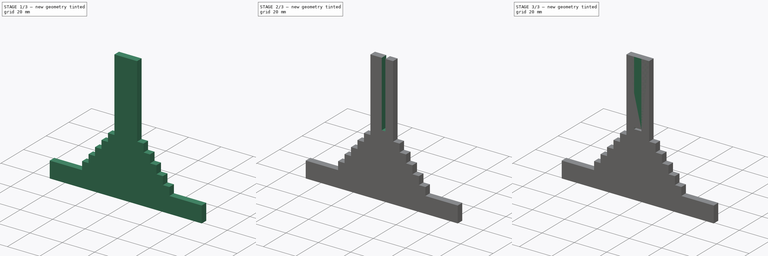
[diagram: build sequence overview — one tinted view per stage of 3, left to right]
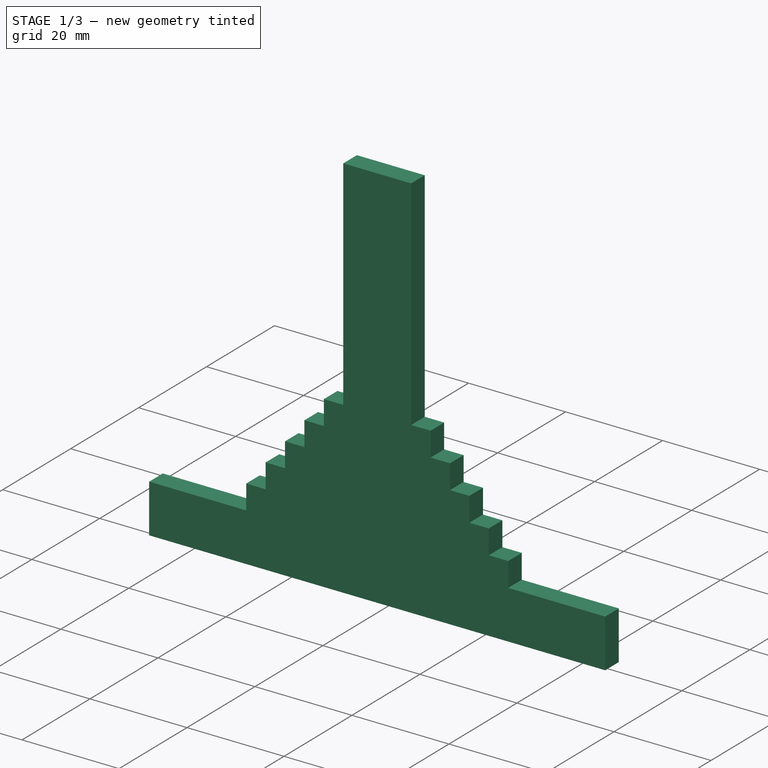
[diagram: stage 1 of 3 — iso view after this stage's code; geometry added in this stage tinted green]
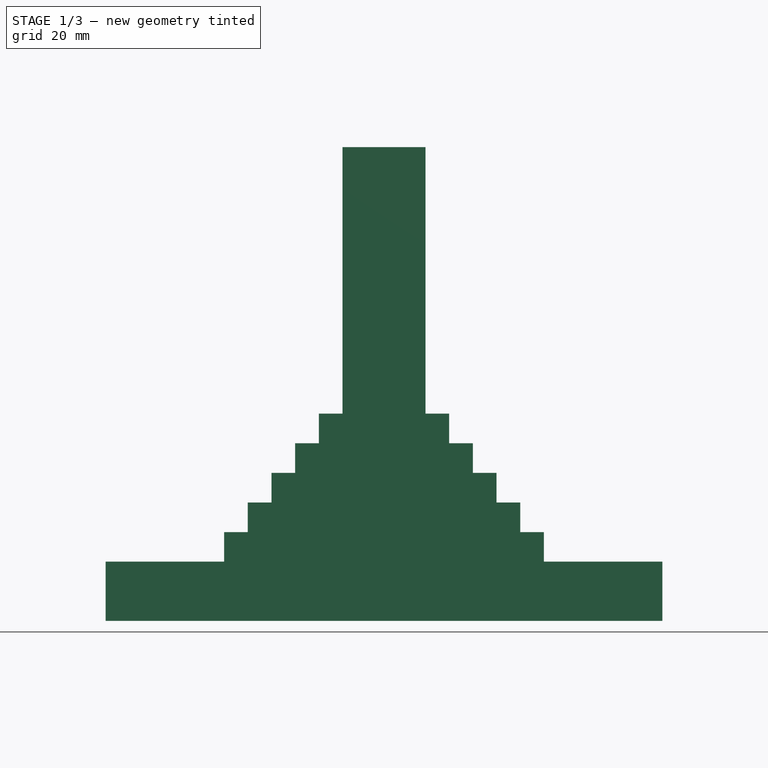
[diagram: stage 1 of 3 — front view after this stage's code; geometry added in this stage tinted green]
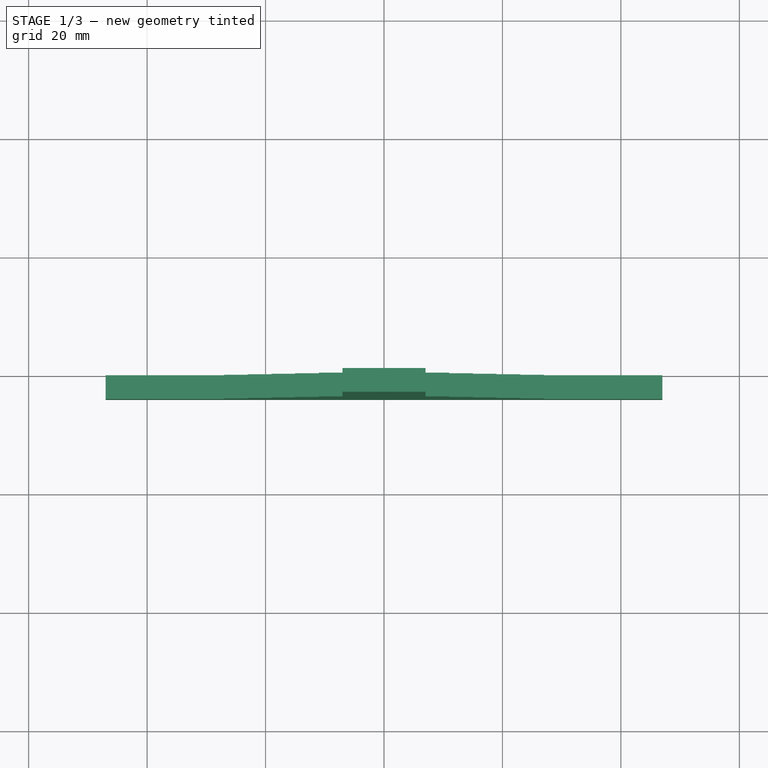
[diagram: stage 1 of 3 — top view after this stage's code; geometry added in this stage tinted green]
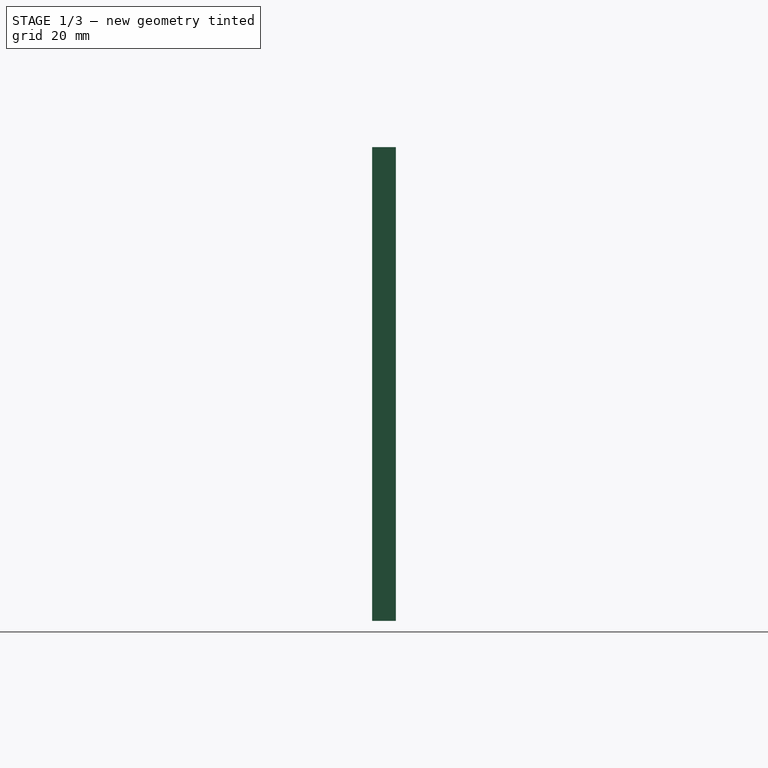
[diagram: stage 1 of 3 — right view after this stage's code; geometry added in this stage tinted green]
FCSTD DOCUMENT  (FreeCAD 1.0R39109 (Git))
Label: bottleDryer
License: All rights reserved
LicenseURL: https://en.wikipedia.org/wiki/All_rights_reserved
objects: Sketcher::SketchObject×2, PartDesign::Pad×2, PartDesign::Mirrored×2, PartDesign::SubtractiveBox×2, PartDesign::Body×2
note: 22 computed .brp shape members not serialized (recipe doc carries the construction recipe); baked Part::Feature solids carry a one-line shape summary decoded from their .brp

FEATURE [PartDesign::Body] Body
  AllowCompound = false
  Group = -> [Sketch,Pad,Mirrored,Box]
  Origin = -> Origin
  Tip = -> Box
FEATURE [Sketcher::SketchObject] Sketch001
  ArcFitTolerance = 1e-06
  AttachmentSupport = -> [XZ_Plane001]
  FullyConstrained = true
  MakeInternals = false
  MapMode = 5
  Placement = pos=(0,0,0) rot=(1,0,0;1.5708rad)
  sketch-geometry (34):
    g0: LineSegment StartX=0 StartY=0 StartZ=0 EndX=0 EndY=80 EndZ=0
    g1: LineSegment StartX=0 StartY=80 StartZ=0 EndX=-7 EndY=80 EndZ=0
    g2: LineSegment [constr] StartX=-7 StartY=80 StartZ=0 EndX=-7 EndY=0 EndZ=0
    g3: LineSegment StartX=-7 StartY=0 StartZ=0 EndX=0 EndY=0 EndZ=0
    g4: LineSegment [constr] StartX=-7 StartY=0 StartZ=0 EndX=-7 EndY=10 EndZ=0
    g5: LineSegment [constr] StartX=-7 StartY=10 StartZ=0 EndX=-47 EndY=10 EndZ=0
    g6: LineSegment StartX=-47 StartY=10 StartZ=0 EndX=-47 EndY=0 EndZ=0
    g7: LineSegment StartX=-47 StartY=0 StartZ=0 EndX=-7 EndY=0 EndZ=0
    g8: LineSegment StartX=-7 StartY=35 StartZ=0 EndX=-11 EndY=35 EndZ=0
    g9: LineSegment [constr] StartX=-11 StartY=35 StartZ=0 EndX=-11 EndY=10 EndZ=0
    g10: LineSegment [constr] StartX=-11 StartY=10 StartZ=0 EndX=-7 EndY=10 EndZ=0
    g11: LineSegment [constr] StartX=-7 StartY=10 StartZ=0 EndX=-7 EndY=35 EndZ=0
    g12: LineSegment StartX=-11 StartY=30 StartZ=0 EndX=-15 EndY=30 EndZ=0
    g13: LineSegment [constr] StartX=-15 StartY=30 StartZ=0 EndX=-15 EndY=10 EndZ=0
    g14: LineSegment [constr] StartX=-15 StartY=10 StartZ=0 EndX=-11 EndY=10 EndZ=0
    g15: LineSegment [constr] StartX=-11 StartY=10 StartZ=0 EndX=-11 EndY=30 EndZ=0
    g16: LineSegment StartX=-15 StartY=25 StartZ=0 EndX=-19 EndY=25 EndZ=0
    g17: LineSegment [constr] StartX=-19 StartY=25 StartZ=0 EndX=-19 EndY=10 EndZ=0
    g18: LineSegment [constr] StartX=-19 StartY=10 StartZ=0 EndX=-15 EndY=10 EndZ=0
    g19: LineSegment [constr] StartX=-15 StartY=10 StartZ=0 EndX=-15 EndY=25 EndZ=0
    g20: LineSegment StartX=-19 StartY=20 StartZ=0 EndX=-23 EndY=20 EndZ=0
    g21: LineSegment [constr] StartX=-23 StartY=20 StartZ=0 EndX=-23 EndY=10 EndZ=0
    g22: LineSegment [constr] StartX=-23 StartY=10 StartZ=0 EndX=-19 EndY=10 EndZ=0
    g23: LineSegment [constr] StartX=-19 StartY=10 StartZ=0 EndX=-19 EndY=20 EndZ=0
    g24: LineSegment StartX=-23 StartY=15 StartZ=0 EndX=-27 EndY=15 EndZ=0
    g25: LineSegment StartX=-27 StartY=15 StartZ=0 EndX=-27 EndY=10 EndZ=0
    g26: LineSegment [constr] StartX=-27 StartY=10 StartZ=0 EndX=-23 EndY=10 EndZ=0
    g27: LineSegment [constr] StartX=-23 StartY=10 StartZ=0 EndX=-23 EndY=15 EndZ=0
    g28: LineSegment StartX=-23 StartY=15 StartZ=0 EndX=-23 EndY=20 EndZ=0
    g29: LineSegment StartX=-19 StartY=20 StartZ=0 EndX=-19 EndY=25 EndZ=0
    g30: LineSegment StartX=-15 StartY=25 StartZ=0 EndX=-15 EndY=30 EndZ=0
    g31: LineSegment StartX=-11 StartY=30 StartZ=0 EndX=-11 EndY=35 EndZ=0
    g32: LineSegment StartX=-7 StartY=80 StartZ=0 EndX=-7 EndY=35 EndZ=0
    g33: LineSegment StartX=-27 StartY=10 StartZ=0 EndX=-47 EndY=10 EndZ=0
  constraints (93):
    c: Coincident(g0,g1)
    c: Coincident(g1,g2)
    c: Coincident(g2,g3)
    c: Coincident(g3,g0)
    c: Vertical(g0)
    c: Vertical(g2)
    c: Horizontal(g1)
    c: Horizontal(g3)
    c: Coincident(g0,g-1)
    c: DistanceY(g2,g2) = 80
    c: Coincident(g4,g5)
    c: Coincident(g5,g6)
    c: Coincident(g6,g7)
    c: Coincident(g7,g4)
    c: Vertical(g4)
    c: Vertical(g6)
    c: Horizontal(g5)
    c: Horizontal(g7)
    c: Coincident(g4,g2)
    c: DistanceX(g3,g3) = 7
    c: DistanceX(g7,g7) = 40
    c: Distance(g6,g6) = 10
    c: Coincident(g8,g9)
    c: Coincident(g9,g10)
    c: Coincident(g10,g11)
    c: Coincident(g11,g8)
    c: Horizontal(g8)
    c: Horizontal(g10)
    c: Vertical(g9)
    c: Vertical(g11)
    c: PointOnObject(g8,g2)
    c: PointOnObject(g9,g5)
    c: Coincident(g12,g13)
    c: Coincident(g13,g14)
    c: Coincident(g14,g15)
    c: Coincident(g15,g12)
    c: Horizontal(g12)
    c: Horizontal(g14)
    c: Vertical(g13)
    c: Vertical(g15)
    c: PointOnObject(g12,g9)
    c: PointOnObject(g13,g5)
    c: Coincident(g16,g17)
    c: Coincident(g17,g18)
    c: Coincident(g18,g19)
    c: Coincident(g19,g16)
    c: Horizontal(g16)
    c: Horizontal(g18)
    c: Vertical(g17)
    c: Vertical(g19)
    c: PointOnObject(g16,g13)
    c: PointOnObject(g17,g5)
    c: Equal(g12,g8)
    c: Equal(g8,g16)
    c: Coincident(g20,g21)
    c: Coincident(g21,g22)
    c: Coincident(g22,g23)
    c: Coincident(g23,g20)
    c: Horizontal(g20)
    c: Horizontal(g22)
    c: Vertical(g21)
    c: Vertical(g23)
    c: PointOnObject(g20,g17)
    c: PointOnObject(g21,g5)
    c: Coincident(g24,g25)
    c: Coincident(g25,g26)
    c: Coincident(g26,g27)
    c: Coincident(g27,g24)
    c: Horizontal(g24)
    c: Horizontal(g26)
    c: Vertical(g25)
    c: Vertical(g27)
    c: Symmetric(g21,g21,g24)
    c: PointOnObject(g25,g5)
    c: Equal(g24,g20)
    c: Equal(g20,g16)
    c: Coincident(g28,g24)
    c: Coincident(g28,g20)
    c: Coincident(g29,g20)
    c: Coincident(g29,g16)
    c: Coincident(g30,g16)
    c: Coincident(g30,g12)
    c: Coincident(g31,g12)
    c: Coincident(g31,g8)
    c: Equal(g31,g30)
    c: Equal(g30,g29)
    c: Equal(g29,g28)
    c: Distance(g8,g8) = 4
    c: Distance(g31,g31) = 5
    c: Coincident(g32,g1)
    c: Coincident(g32,g8)
    c: Coincident(g33,g25)
    c: Coincident(g33,g5)
FEATURE [PartDesign::Pad] Pad001
  Direction = (0,-1,2e-16)
  Length = 4
  Length2 = 10
  Placement = pos=(0,0,0) rot=(1,0,0;1.5708rad)
  Profile = -> Sketch001
  ReferenceAxis = -> Sketch001 [N_Axis]
  Refine = true
  Suppressed = false
  Type = 0
FEATURE [PartDesign::Mirrored] Mirrored001
  BaseFeature = -> Pad001
  MirrorPlane = -> YZ_Plane001
  Placement = pos=(0,0,0) rot=(1,0,0;1.5708rad)
  Refine = true
  Suppressed = false
  TransformMode = 1
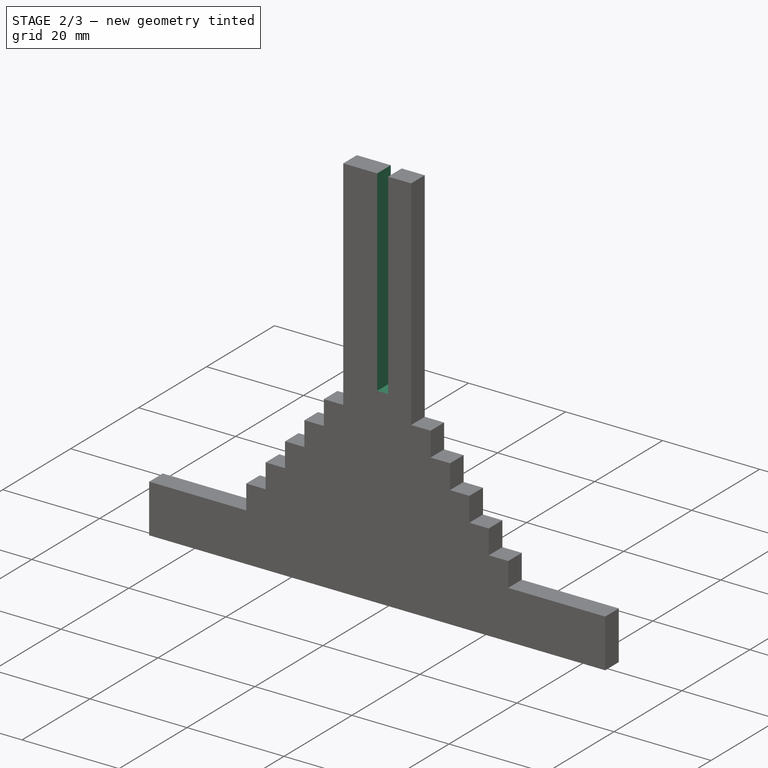
[diagram: stage 2 of 3 — iso view after this stage's code; geometry added in this stage tinted green]
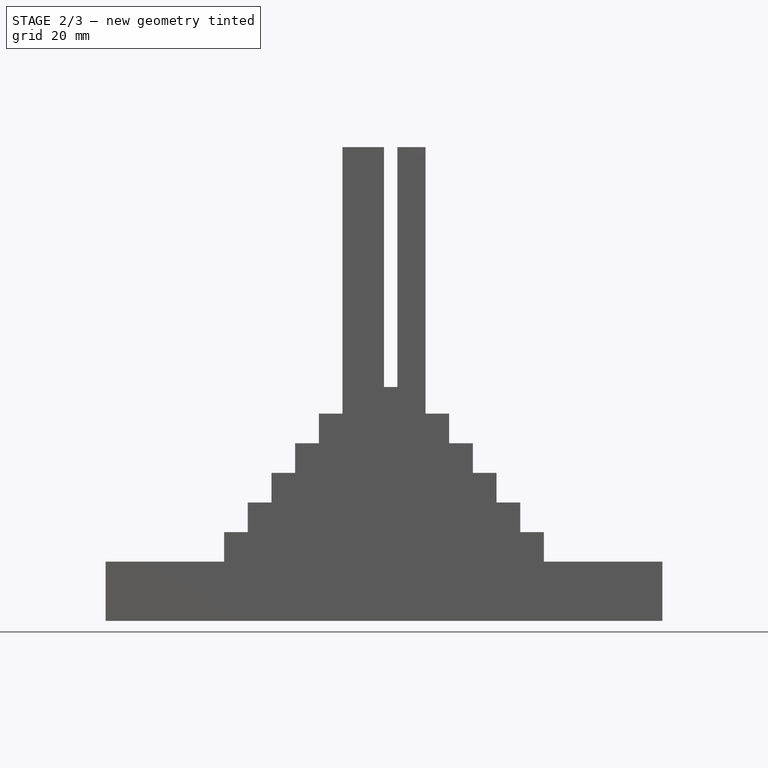
[diagram: stage 2 of 3 — front view after this stage's code; geometry added in this stage tinted green]
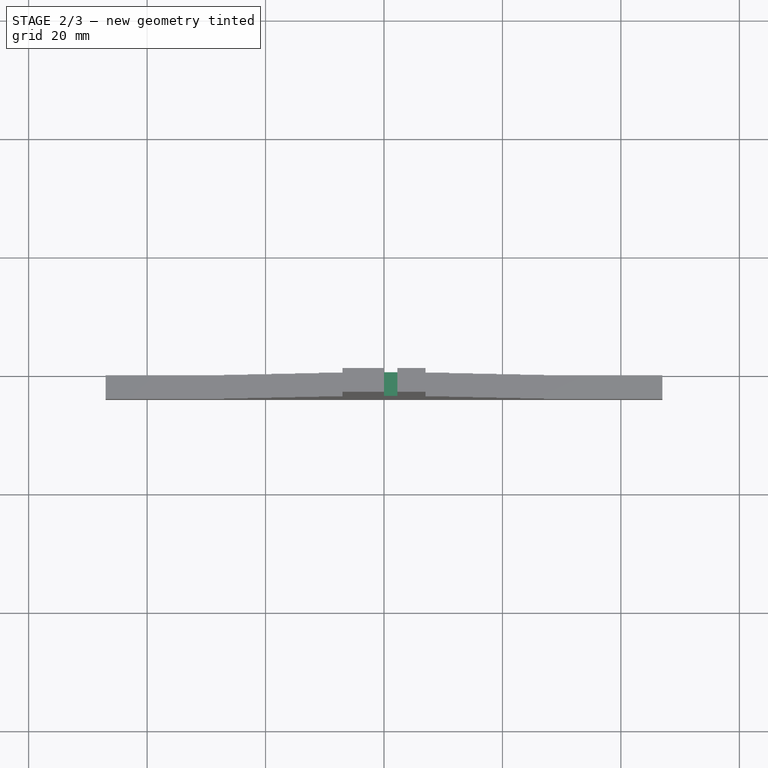
[diagram: stage 2 of 3 — top view after this stage's code; geometry added in this stage tinted green]
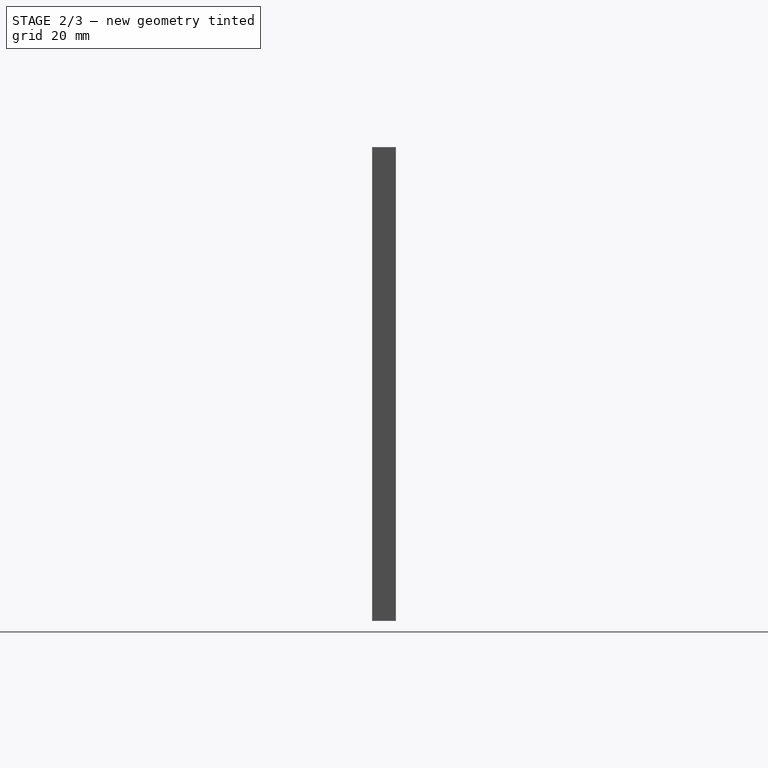
[diagram: stage 2 of 3 — right view after this stage's code; geometry added in this stage tinted green]
FEATURE [Sketcher::SketchObject] Sketch
  ArcFitTolerance = 1e-06
  AttachmentSupport = -> [XZ_Plane]
  FullyConstrained = true
  MakeInternals = false
  MapMode = 5
  Placement = pos=(0,0,0) rot=(1,0,0;1.5708rad)
  sketch-geometry (34):
    g0: LineSegment StartX=0 StartY=0 StartZ=0 EndX=0 EndY=80 EndZ=0
    g1: LineSegment StartX=0 StartY=80 StartZ=0 EndX=-7 EndY=80 EndZ=0
    g2: LineSegment [constr] StartX=-7 StartY=80 StartZ=0 EndX=-7 EndY=0 EndZ=0
    g3: LineSegment StartX=-7 StartY=0 StartZ=0 EndX=0 EndY=0 EndZ=0
    g4: LineSegment [constr] StartX=-7 StartY=0 StartZ=0 EndX=-7 EndY=10 EndZ=0
    g5: LineSegment [constr] StartX=-7 StartY=10 StartZ=0 EndX=-47 EndY=10 EndZ=0
    g6: LineSegment StartX=-47 StartY=10 StartZ=0 EndX=-47 EndY=0 EndZ=0
    g7: LineSegment StartX=-47 StartY=0 StartZ=0 EndX=-7 EndY=0 EndZ=0
    g8: LineSegment StartX=-7 StartY=35 StartZ=0 EndX=-11 EndY=35 EndZ=0
    g9: LineSegment [constr] StartX=-11 StartY=35 StartZ=0 EndX=-11 EndY=10 EndZ=0
    g10: LineSegment [constr] StartX=-11 StartY=10 StartZ=0 EndX=-7 EndY=10 EndZ=0
    g11: LineSegment [constr] StartX=-7 StartY=10 StartZ=0 EndX=-7 EndY=35 EndZ=0
    g12: LineSegment StartX=-11 StartY=30 StartZ=0 EndX=-15 EndY=30 EndZ=0
    g13: LineSegment [constr] StartX=-15 StartY=30 StartZ=0 EndX=-15 EndY=10 EndZ=0
    g14: LineSegment [constr] StartX=-15 StartY=10 StartZ=0 EndX=-11 EndY=10 EndZ=0
    g15: LineSegment [constr] StartX=-11 StartY=10 StartZ=0 EndX=-11 EndY=30 EndZ=0
    g16: LineSegment StartX=-15 StartY=25 StartZ=0 EndX=-19 EndY=25 EndZ=0
    g17: LineSegment [constr] StartX=-19 StartY=25 StartZ=0 EndX=-19 EndY=10 EndZ=0
    g18: LineSegment [constr] StartX=-19 StartY=10 StartZ=0 EndX=-15 EndY=10 EndZ=0
    g19: LineSegment [constr] StartX=-15 StartY=10 StartZ=0 EndX=-15 EndY=25 EndZ=0
    g20: LineSegment StartX=-19 StartY=20 StartZ=0 EndX=-23 EndY=20 EndZ=0
    g21: LineSegment [constr] StartX=-23 StartY=20 StartZ=0 EndX=-23 EndY=10 EndZ=0
    g22: LineSegment [constr] StartX=-23 StartY=10 StartZ=0 EndX=-19 EndY=10 EndZ=0
    g23: LineSegment [constr] StartX=-19 StartY=10 StartZ=0 EndX=-19 EndY=20 EndZ=0
    g24: LineSegment StartX=-23 StartY=15 StartZ=0 EndX=-27 EndY=15 EndZ=0
    g25: LineSegment StartX=-27 StartY=15 StartZ=0 EndX=-27 EndY=10 EndZ=0
    g26: LineSegment [constr] StartX=-27 StartY=10 StartZ=0 EndX=-23 EndY=10 EndZ=0
    g27: LineSegment [constr] StartX=-23 StartY=10 StartZ=0 EndX=-23 EndY=15 EndZ=0
    g28: LineSegment StartX=-23 StartY=15 StartZ=0 EndX=-23 EndY=20 EndZ=0
    g29: LineSegment StartX=-19 StartY=20 StartZ=0 EndX=-19 EndY=25 EndZ=0
    g30: LineSegment StartX=-15 StartY=25 StartZ=0 EndX=-15 EndY=30 EndZ=0
    g31: LineSegment StartX=-11 StartY=30 StartZ=0 EndX=-11 EndY=35 EndZ=0
    g32: LineSegment StartX=-7 StartY=80 StartZ=0 EndX=-7 EndY=35 EndZ=0
    g33: LineSegment StartX=-27 StartY=10 StartZ=0 EndX=-47 EndY=10 EndZ=0
  constraints (93):
    c: Coincident(g0,g1)
    c: Coincident(g1,g2)
    c: Coincident(g2,g3)
    c: Coincident(g3,g0)
    c: Vertical(g0)
    c: Vertical(g2)
    c: Horizontal(g1)
    c: Horizontal(g3)
    c: Coincident(g0,g-1)
    c: DistanceY(g2,g2) = 80
    c: Coincident(g4,g5)
    c: Coincident(g5,g6)
    c: Coincident(g6,g7)
    c: Coincident(g7,g4)
    c: Vertical(g4)
    c: Vertical(g6)
    c: Horizontal(g5)
    c: Horizontal(g7)
    c: Coincident(g4,g2)
    c: DistanceX(g3,g3) = 7
    c: DistanceX(g7,g7) = 40
    c: Distance(g6,g6) = 10
    c: Coincident(g8,g9)
    c: Coincident(g9,g10)
    c: Coincident(g10,g11)
    c: Coincident(g11,g8)
    c: Horizontal(g8)
    c: Horizontal(g10)
    c: Vertical(g9)
    c: Vertical(g11)
    c: PointOnObject(g8,g2)
    c: PointOnObject(g9,g5)
    c: Coincident(g12,g13)
    c: Coincident(g13,g14)
    c: Coincident(g14,g15)
    c: Coincident(g15,g12)
    c: Horizontal(g12)
    c: Horizontal(g14)
    c: Vertical(g13)
    c: Vertical(g15)
    c: PointOnObject(g12,g9)
    c: PointOnObject(g13,g5)
    c: Coincident(g16,g17)
    c: Coincident(g17,g18)
    c: Coincident(g18,g19)
    c: Coincident(g19,g16)
    c: Horizontal(g16)
    c: Horizontal(g18)
    c: Vertical(g17)
    c: Vertical(g19)
    c: PointOnObject(g16,g13)
    c: PointOnObject(g17,g5)
    c: Equal(g12,g8)
    c: Equal(g8,g16)
    c: Coincident(g20,g21)
    c: Coincident(g21,g22)
    c: Coincident(g22,g23)
    c: Coincident(g23,g20)
    c: Horizontal(g20)
    c: Horizontal(g22)
    c: Vertical(g21)
    c: Vertical(g23)
    c: PointOnObject(g20,g17)
    c: PointOnObject(g21,g5)
    c: Coincident(g24,g25)
    c: Coincident(g25,g26)
    c: Coincident(g26,g27)
    c: Coincident(g27,g24)
    c: Horizontal(g24)
    c: Horizontal(g26)
    c: Vertical(g25)
    c: Vertical(g27)
    c: Symmetric(g21,g21,g24)
    c: PointOnObject(g25,g5)
    c: Equal(g24,g20)
    c: Equal(g20,g16)
    c: Coincident(g28,g24)
    c: Coincident(g28,g20)
    c: Coincident(g29,g20)
    c: Coincident(g29,g16)
    c: Coincident(g30,g16)
    c: Coincident(g30,g12)
    c: Coincident(g31,g12)
    c: Coincident(g31,g8)
    c: Equal(g31,g30)
    c: Equal(g30,g29)
    c: Equal(g29,g28)
    c: Distance(g8,g8) = 4
    c: Distance(g31,g31) = 5
    c: Coincident(g32,g1)
    c: Coincident(g32,g8)
    c: Coincident(g33,g25)
    c: Coincident(g33,g5)
FEATURE [PartDesign::Pad] Pad
  Direction = (0,-1,2e-16)
  Length = 4
  Length2 = 10
  Placement = pos=(0,0,0) rot=(1,0,0;1.5708rad)
  Profile = -> Sketch
  ReferenceAxis = -> Sketch [N_Axis]
  Refine = true
  Suppressed = false
  Type = 0
FEATURE [PartDesign::SubtractiveBox] Box001
  AttacherType = Attacher::AttachEngine3D
  AttachmentOffset = pos=(-2.25,-80,0) rot=(0,0,1;0rad)
  AttachmentSupport = -> [Mirrored001]
  BaseFeature = -> Mirrored001
  Height = 7
  Length = 4.5
  MapMode = 5
  Placement = pos=(2.25,-2.09e-14,80) rot=(0,0.707107,-0.707107;3.14159rad)
  Refine = true
  Suppressed = false
  Width = 40.5
  expr: .AttachmentOffset.Base.x = -Length / 2
  expr: Length = Pad001.Length + 0.5 mm
FEATURE [PartDesign::Body] Body001
  AllowCompound = false
  Group = -> [Sketch001,Pad001,Mirrored001,Box001]
  Origin = -> Origin001
  Tip = -> Box001
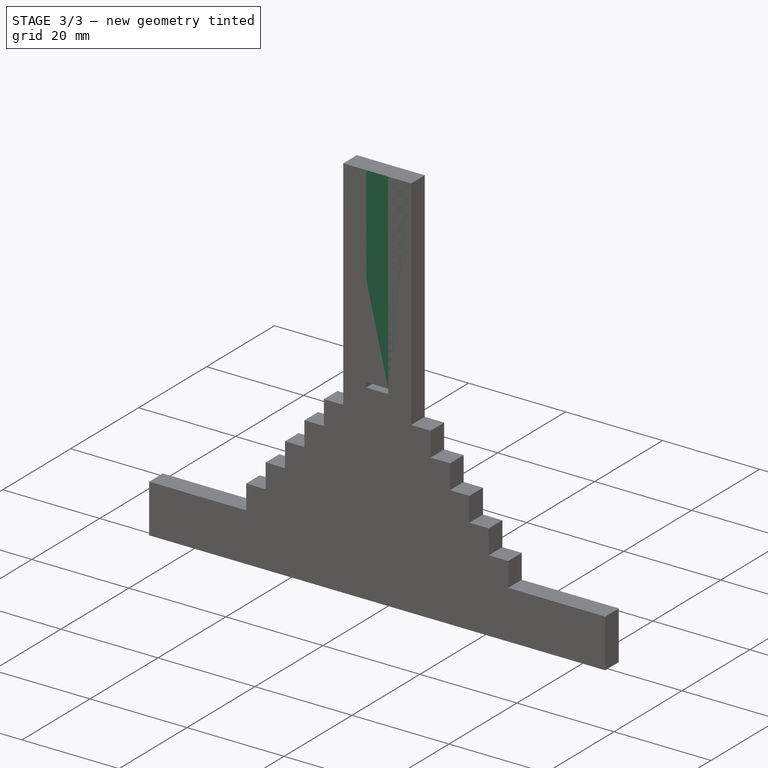
[diagram: stage 3 of 3 — iso view after this stage's code; geometry added in this stage tinted green]
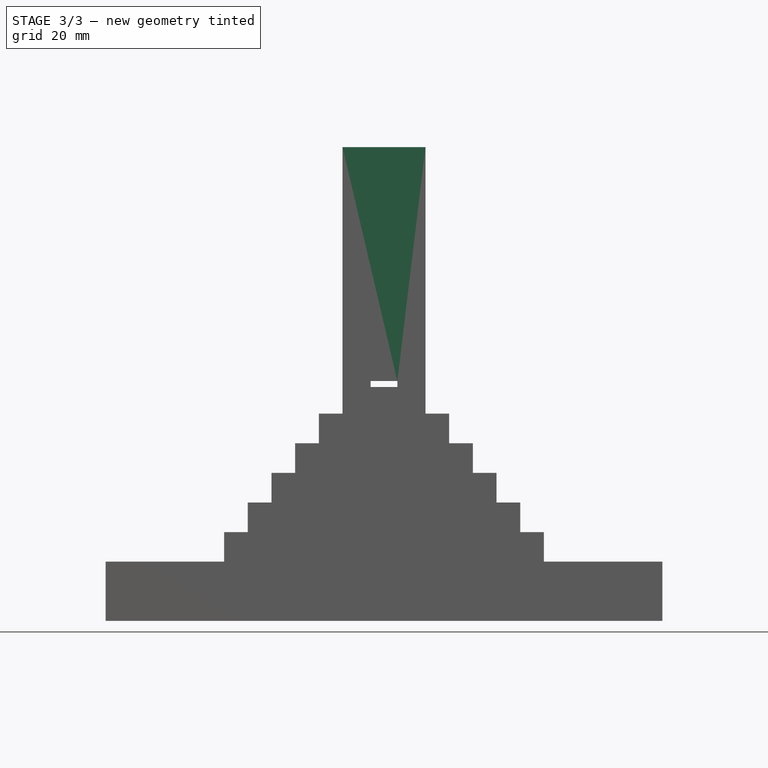
[diagram: stage 3 of 3 — front view after this stage's code; geometry added in this stage tinted green]
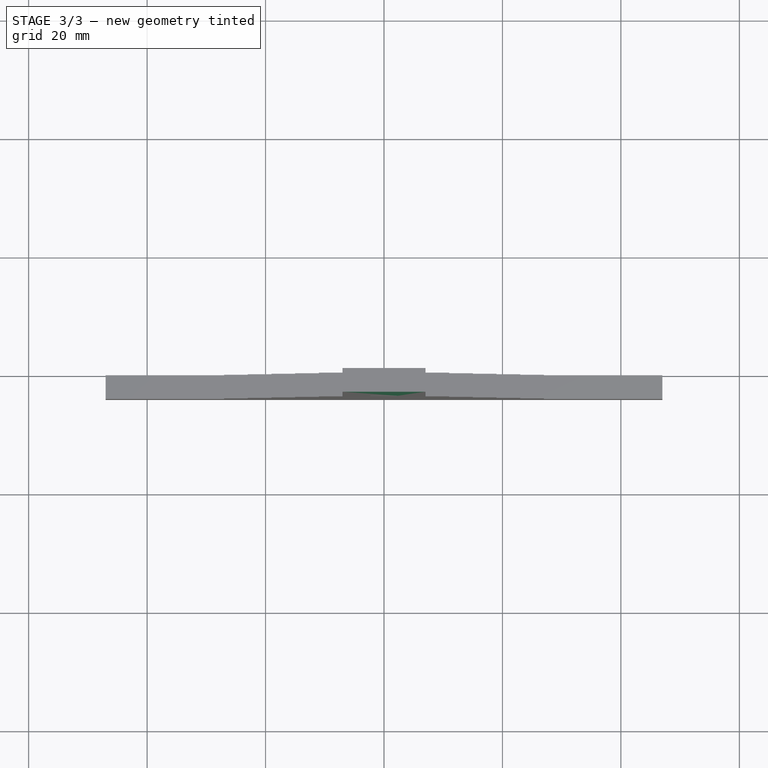
[diagram: stage 3 of 3 — top view after this stage's code; geometry added in this stage tinted green]
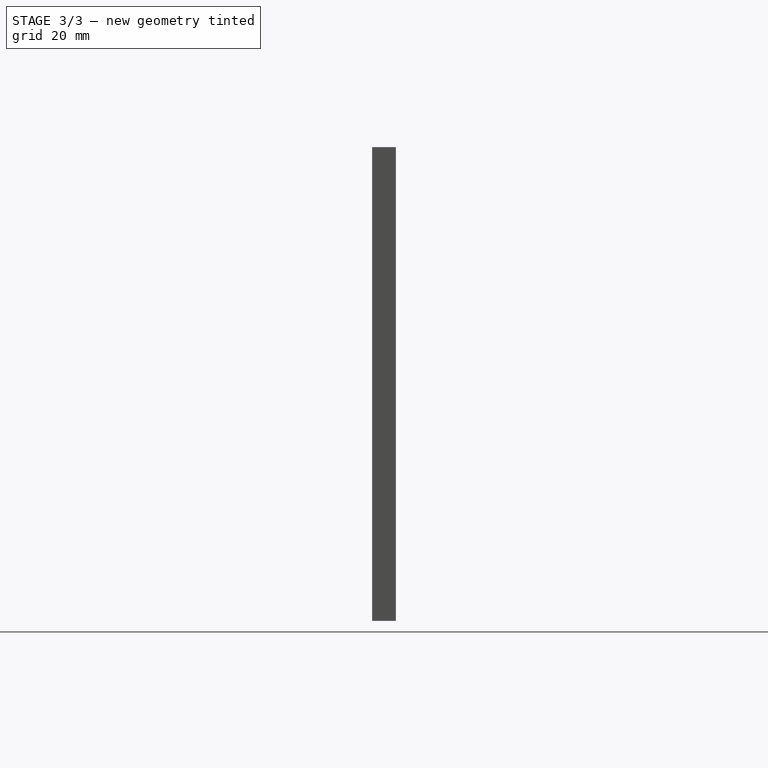
[diagram: stage 3 of 3 — right view after this stage's code; geometry added in this stage tinted green]
FEATURE [PartDesign::Mirrored] Mirrored
  BaseFeature = -> Pad
  MirrorPlane = -> YZ_Plane
  Placement = pos=(0,0,0) rot=(1,0,0;1.5708rad)
  Refine = true
  Suppressed = false
  TransformMode = 1
FEATURE [PartDesign::SubtractiveBox] Box
  AttacherType = Attacher::AttachEngine3D
  AttachmentOffset = pos=(-2.25,0,0) rot=(0,0,1;0rad)
  AttachmentSupport = -> [Mirrored]
  BaseFeature = -> Mirrored
  Height = 7
  Length = 4.5
  MapMode = 5
  Placement = pos=(2.25,-4,1e-15) rot=(0,0.707107,0.707107;3.14159rad)
  Refine = true
  Suppressed = false
  Width = 40.5
  expr: .AttachmentOffset.Base.x = -Length / 2
  expr: Length = Pad.Length + 0.5 mm
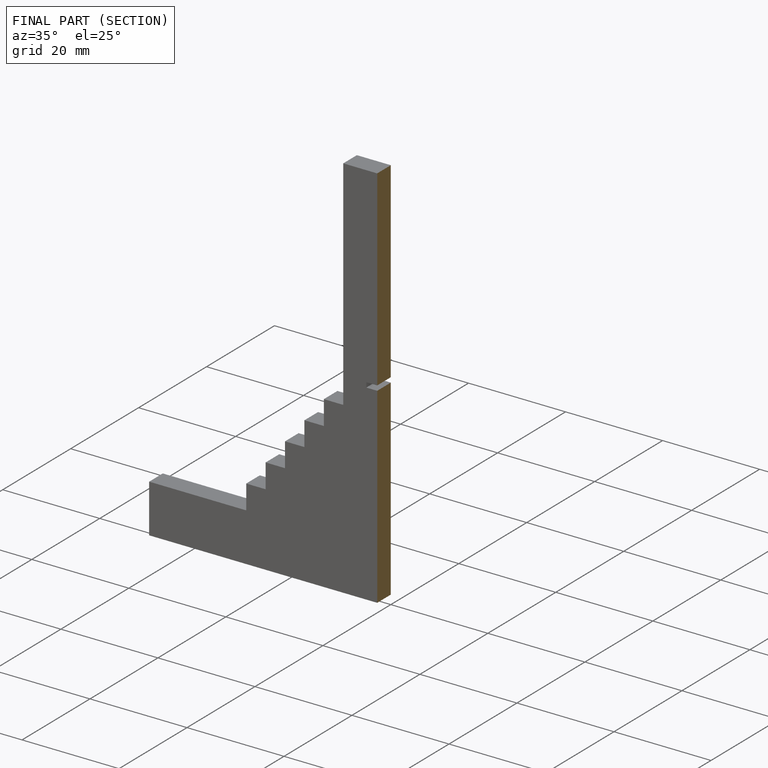
[diagram: finished part — half-section view (interior)]
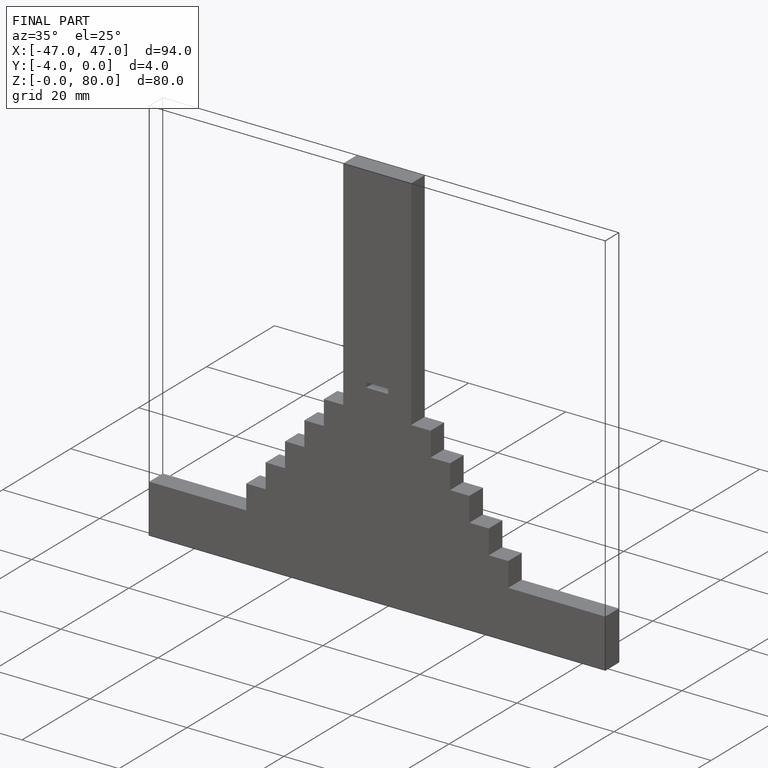
[diagram: finished part — iso view with bounding-box wireframe]
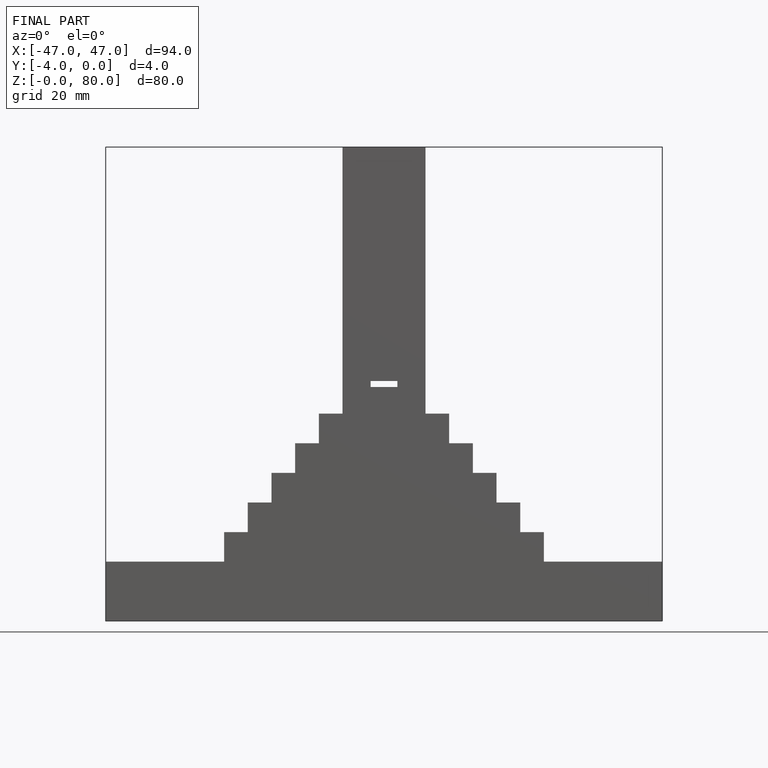
[diagram: finished part — front view with bounding-box wireframe]
